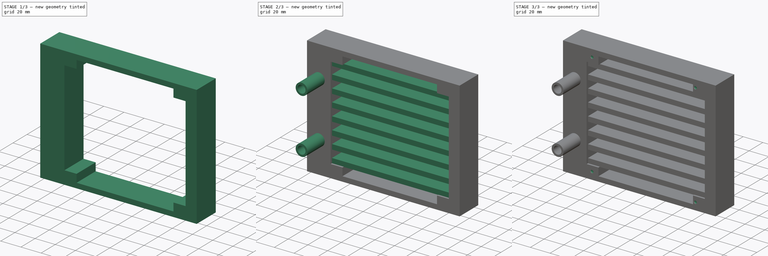
[diagram: build sequence overview — one tinted view per stage of 3, left to right]
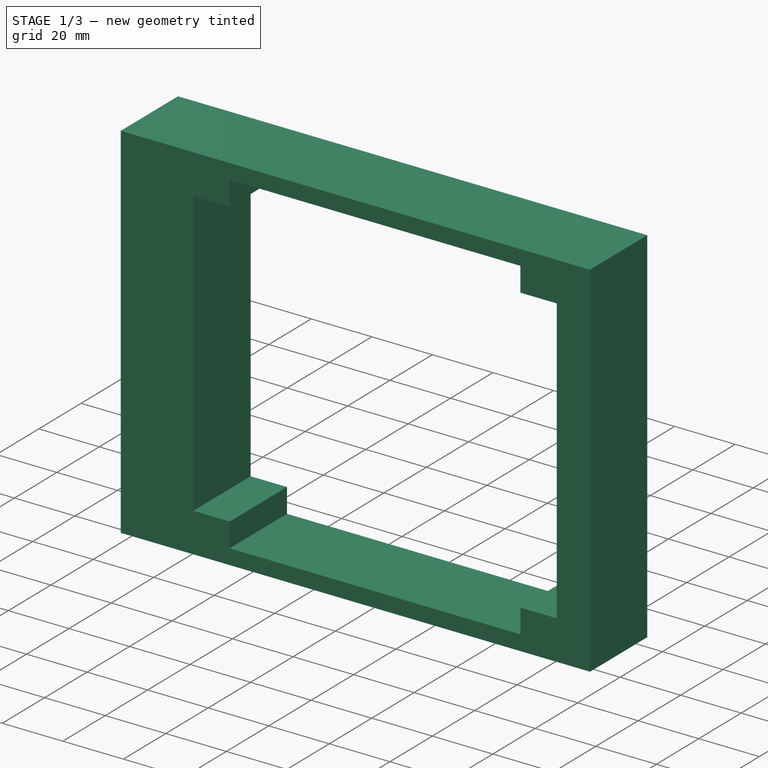
[diagram: stage 1 of 3 — iso view after this stage's code; geometry added in this stage tinted green]
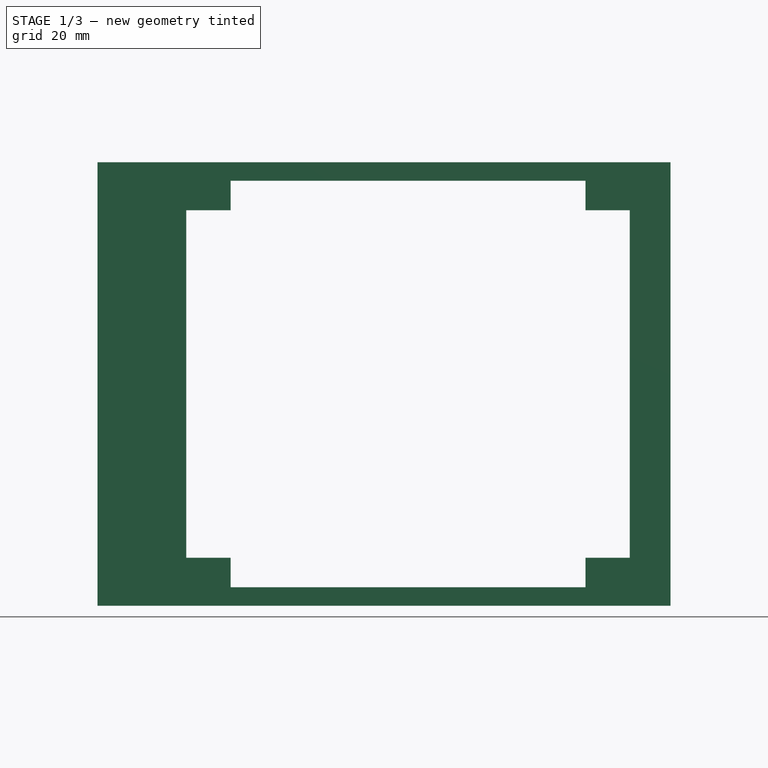
[diagram: stage 1 of 3 — front view after this stage's code; geometry added in this stage tinted green]
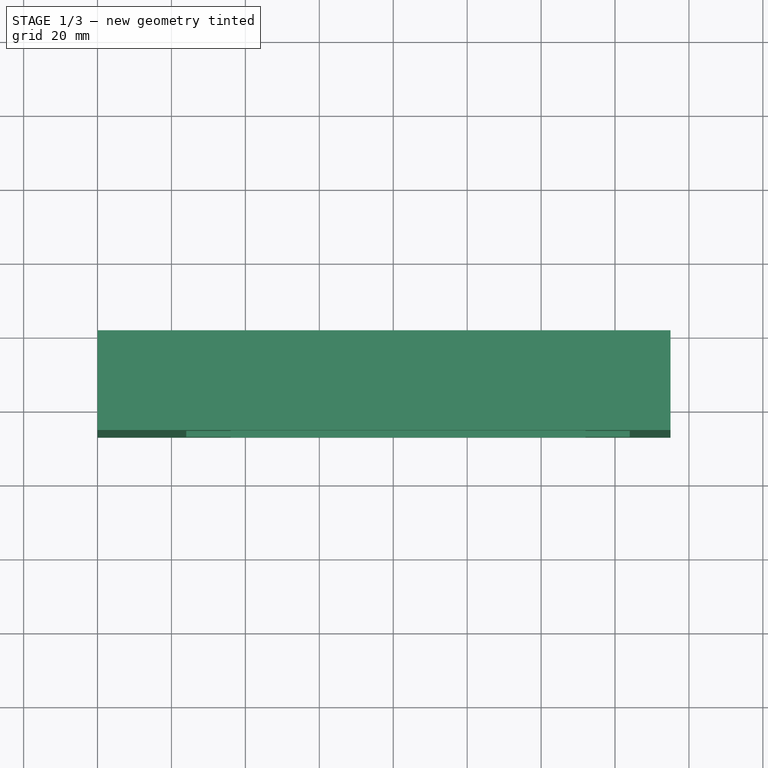
[diagram: stage 1 of 3 — top view after this stage's code; geometry added in this stage tinted green]
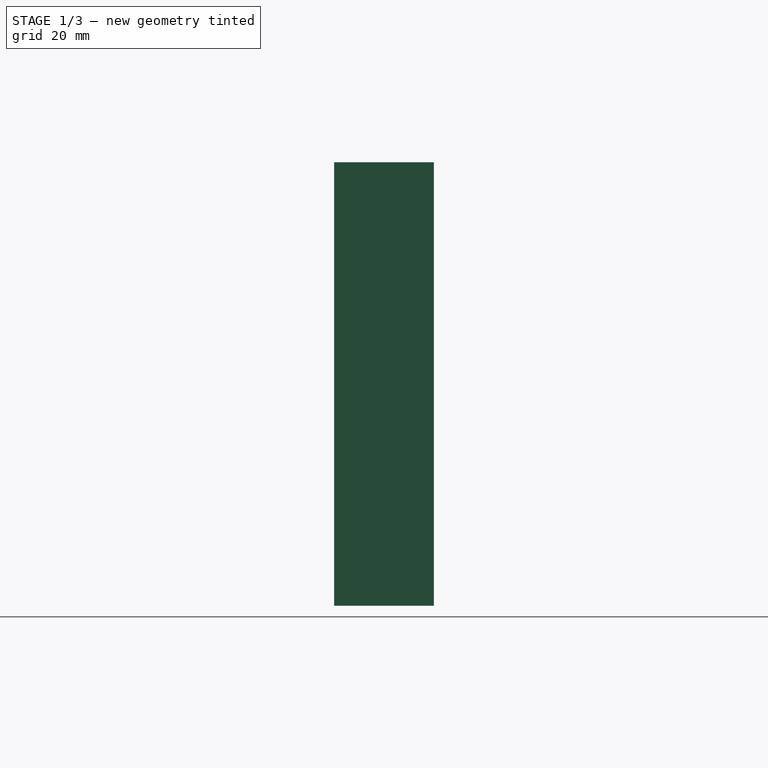
[diagram: stage 1 of 3 — right view after this stage's code; geometry added in this stage tinted green]
FCSTD DOCUMENT  (FreeCAD 0.21R33771 (Git))
Label: ococoo-ars120m8-27b
License: All rights reserved
LicenseURL: http://en.wikipedia.org/wiki/All_rights_reserved
objects: Sketcher::SketchObject×5, PartDesign::Pad×3, PartDesign::Pocket×1, PartDesign::Hole×1, PartDesign::Plane×1, PartDesign::Mirrored×1, PartDesign::Body×1
note: 18 computed .brp shape members not serialized (recipe doc carries the construction recipe); baked Part::Feature solids carry a one-line shape summary decoded from their .brp

FEATURE [Sketcher::SketchObject] Sketch
  FullyConstrained = true
  MapMode = 5
  Placement = pos=(0,0,0) rot=(1,0,0;1.5708rad)
  Support = -> [XZ_Plane]
  sketch-geometry (4):
    g0: LineSegment StartX=0 StartY=0 StartZ=0 EndX=155 EndY=0 EndZ=0
    g1: LineSegment StartX=155 StartY=0 StartZ=0 EndX=155 EndY=120 EndZ=0
    g2: LineSegment StartX=155 StartY=120 StartZ=0 EndX=0 EndY=120 EndZ=0
    g3: LineSegment StartX=0 StartY=120 StartZ=0 EndX=0 EndY=0 EndZ=0
  constraints (11):
    c: Coincident(g0,g1)
    c: Coincident(g1,g2)
    c: Coincident(g2,g3)
    c: Coincident(g3,g0)
    c: Horizontal(g0)
    c: Horizontal(g2)
    c: Vertical(g1)
    c: Vertical(g3)
    c: Coincident(g0,g-1)
    c: DistanceY(g3,g3) = 120
    c: DistanceX(g2,g2) = 155
FEATURE [PartDesign::Pad] Pad
  Direction = (0,-1,2e-16)
  Length = 27
  Length2 = 10
  Placement = pos=(0,0,0) rot=(1,0,0;1.5708rad)
  Profile = -> Sketch
  ReferenceAxis = -> Sketch [N_Axis]
  Type = 0
FEATURE [Sketcher::SketchObject] Sketch001
  ExternalGeometry = -> [Pad]
  FullyConstrained = true
  MapMode = 5
  Placement = pos=(0,-27,1.19e-14) rot=(1,0,0;1.5708rad)
  Support = -> [Pad]
  sketch-geometry (16):
    g0: LineSegment StartX=36 StartY=115 StartZ=0 EndX=36 EndY=107 EndZ=0
    g1: LineSegment StartX=36 StartY=107 StartZ=0 EndX=24 EndY=107 EndZ=0
    g2: LineSegment StartX=24 StartY=107 StartZ=0 EndX=24 EndY=13 EndZ=0
    g3: LineSegment StartX=24 StartY=13 StartZ=0 EndX=36 EndY=13 EndZ=0
    g4: LineSegment StartX=36 StartY=13 StartZ=0 EndX=36 EndY=5 EndZ=0
    g5: LineSegment StartX=36 StartY=5 StartZ=0 EndX=132 EndY=5 EndZ=0
    g6: LineSegment StartX=132 StartY=5 StartZ=0 EndX=132 EndY=13 EndZ=0
    g7: LineSegment StartX=132 StartY=13 StartZ=0 EndX=144 EndY=13 EndZ=0
    g8: LineSegment StartX=144 StartY=13 StartZ=0 EndX=144 EndY=107 EndZ=0
    g9: LineSegment StartX=144 StartY=107 StartZ=0 EndX=132 EndY=107 EndZ=0
    g10: LineSegment StartX=132 StartY=107 StartZ=0 EndX=132 EndY=115 EndZ=0
    g11: LineSegment StartX=132 StartY=115 StartZ=0 EndX=36 EndY=115 EndZ=0
    g12: LineSegment StartX=36 StartY=107 StartZ=0 EndX=132 EndY=107 EndZ=0
    g13: LineSegment StartX=132 StartY=107 StartZ=0 EndX=132 EndY=13 EndZ=0
    g14: LineSegment StartX=132 StartY=13 StartZ=0 EndX=36 EndY=13 EndZ=0
    g15: LineSegment StartX=36 StartY=13 StartZ=0 EndX=36 EndY=107 EndZ=0
  constraints (44):
    c: Vertical(g0)
    c: Coincident(g0,g1)
    c: Horizontal(g1)
    c: Coincident(g1,g2)
    c: Vertical(g2)
    c: Coincident(g2,g3)
    c: Coincident(g3,g4)
    c: Coincident(g4,g5)
    c: Horizontal(g5)
    c: Coincident(g5,g6)
    c: Coincident(g6,g7)
    c: Coincident(g7,g8)
    c: Coincident(g8,g9)
    c: Coincident(g9,g10)
    c: Coincident(g10,g11)
    c: Coincident(g11,g0)
    c: Horizontal(g11)
    c: Horizontal(g3)
    c: Horizontal(g7)
    c: Horizontal(g9)
    c: Vertical(g4)
    c: Vertical(g6)
    c: Vertical(g8)
    c: Vertical(g10)
    c: Coincident(g12,g13)
    c: Coincident(g13,g14)
    c: Coincident(g14,g15)
    c: Coincident(g15,g12)
    c: Horizontal(g12)
    c: Horizontal(g14)
    c: Vertical(g13)
    c: Vertical(g15)
    c: Coincident(g12,g0)
    c: Coincident(g13,g6)
    c: Coincident(g9,g12)
    c: Coincident(g14,g3)
    c: Equal(g3,g7)
    c: Equal(g0,g4)
    c: DistanceX(g1,g8) = 120
    c: DistanceY(g-1,g4) = 5
    c: DistanceY(g0,g-3) = 5
    c: DistanceX(g-1,g2) = 24
    c: DistanceY(g4,g4) = 8
    c: DistanceX(g7,g7) = 12
FEATURE [PartDesign::Pocket] Pocket
  BaseFeature = -> Pad
  Direction = (0,1,-2e-16)
  Length = 2
  Length2 = 5
  Placement = pos=(0,0,0) rot=(1,0,0;1.5708rad)
  Profile = -> Sketch001
  ReferenceAxis = -> Sketch001 [N_Axis]
  Type = 1
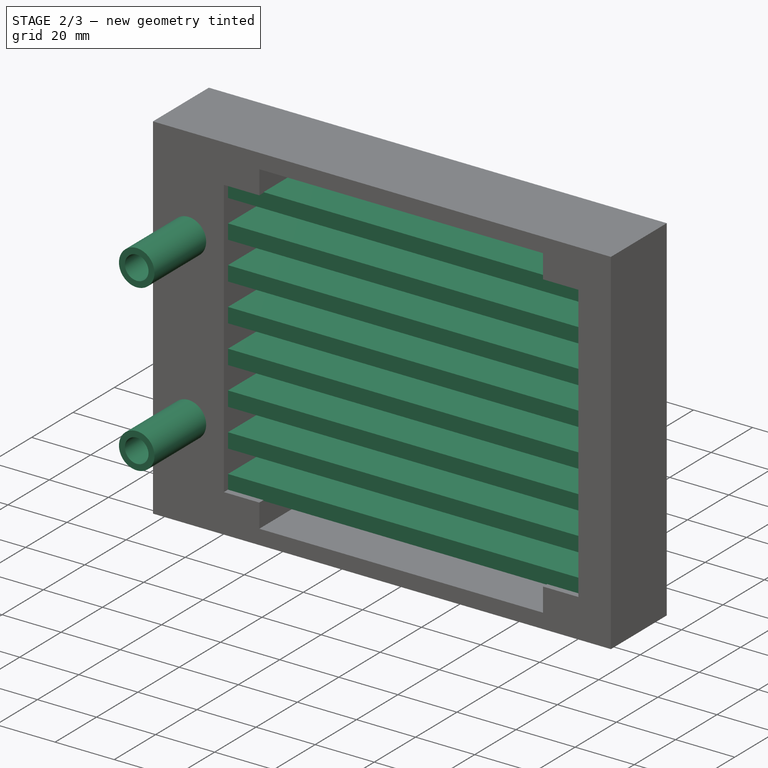
[diagram: stage 2 of 3 — iso view after this stage's code; geometry added in this stage tinted green]
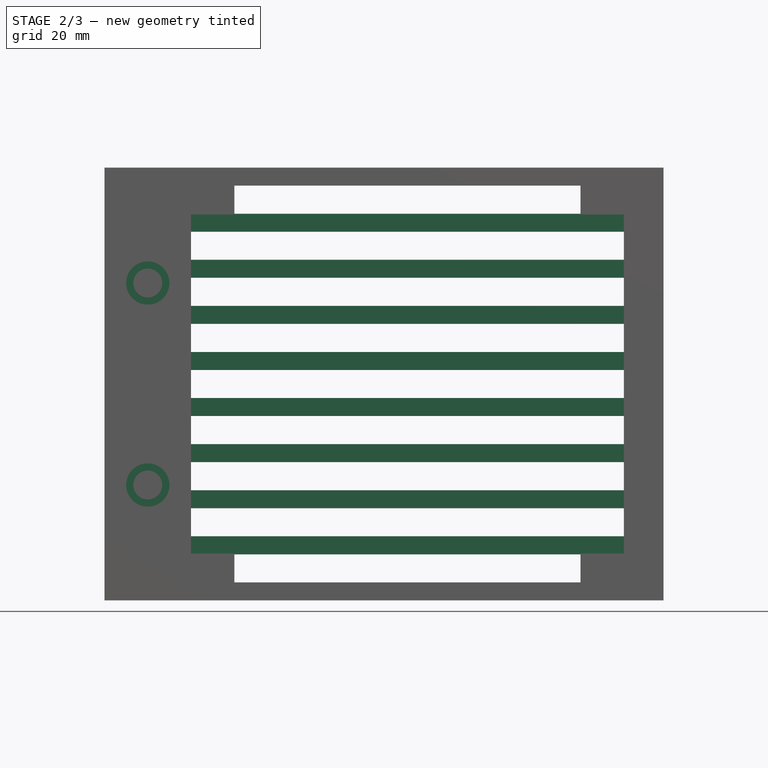
[diagram: stage 2 of 3 — front view after this stage's code; geometry added in this stage tinted green]
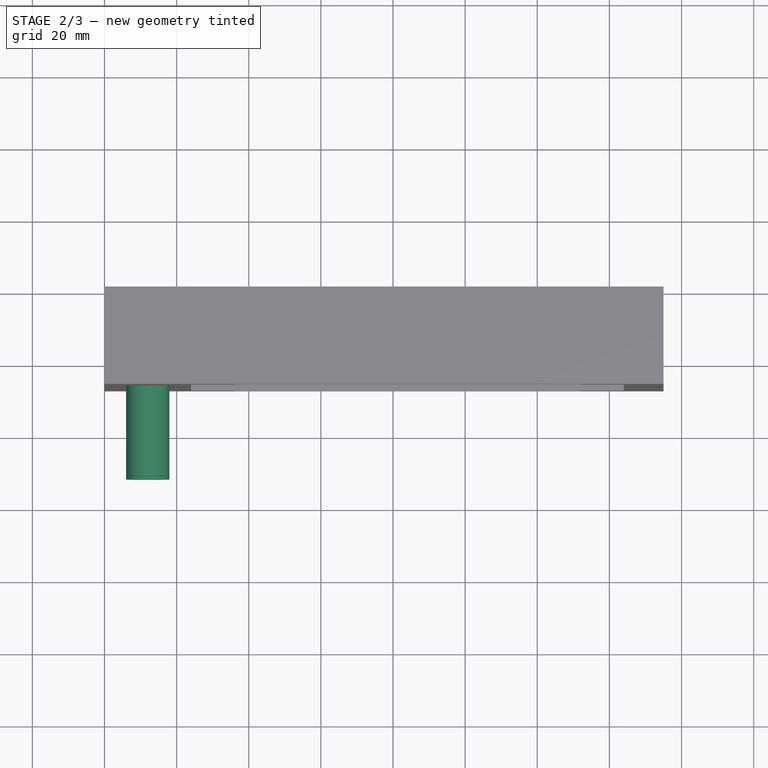
[diagram: stage 2 of 3 — top view after this stage's code; geometry added in this stage tinted green]
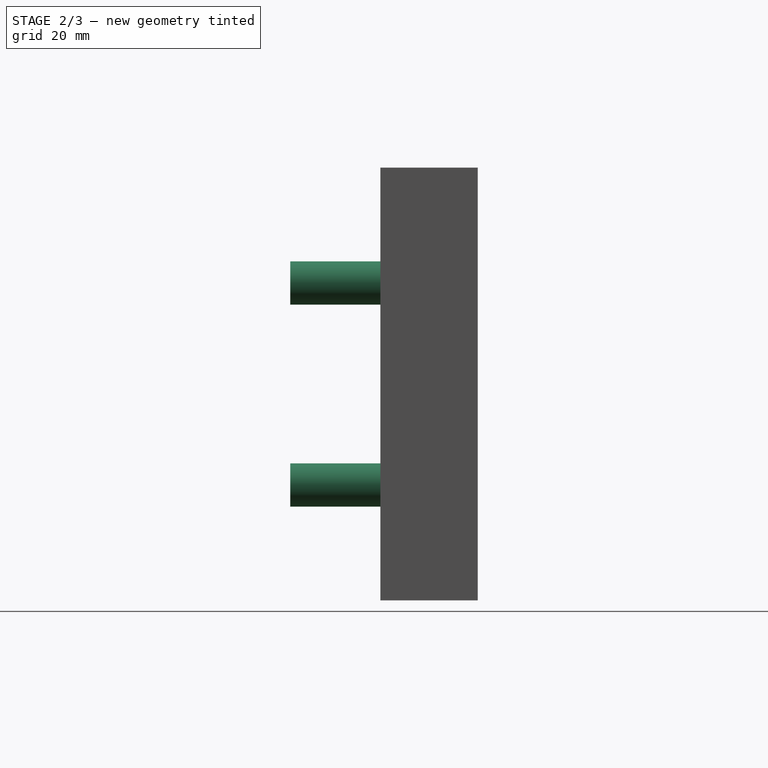
[diagram: stage 2 of 3 — right view after this stage's code; geometry added in this stage tinted green]
FEATURE [Sketcher::SketchObject] Sketch002
  ExternalGeometry = -> [Pocket]
  FullyConstrained = true
  MapMode = 5
  Placement = pos=(24,0,0) rot=(0.707107,0,0.707107;3.14159rad)
  Support = -> [Pocket]
  sketch-geometry (48):
    g0: LineSegment StartX=63.8889 StartY=25 StartZ=0 EndX=68.8889 EndY=25 EndZ=0
    g1: LineSegment StartX=68.8889 StartY=25 StartZ=0 EndX=68.8889 EndY=2 EndZ=0
    g2: LineSegment StartX=68.8889 StartY=2 StartZ=0 EndX=63.8889 EndY=2 EndZ=0
    g3: LineSegment StartX=63.8889 StartY=2 StartZ=0 EndX=63.8889 EndY=25 EndZ=0
    g4: LineSegment StartX=60 StartY=27 StartZ=0 EndX=60 EndY=-1.42e-14 EndZ=0
    g5: LineSegment StartX=76.6667 StartY=25 StartZ=0 EndX=81.6667 EndY=25 EndZ=0
    g6: LineSegment StartX=81.6667 StartY=25 StartZ=0 EndX=81.6667 EndY=2 EndZ=0
    g7: LineSegment StartX=81.6667 StartY=2 StartZ=0 EndX=76.6667 EndY=2 EndZ=0
    g8: LineSegment StartX=76.6667 StartY=2 StartZ=0 EndX=76.6667 EndY=25 EndZ=0
    g9: LineSegment StartX=89.4444 StartY=25 StartZ=0 EndX=94.4444 EndY=25 EndZ=0
    g10: LineSegment StartX=94.4444 StartY=25 StartZ=0 EndX=94.4444 EndY=2 EndZ=0
    g11: LineSegment StartX=94.4444 StartY=2 StartZ=0 EndX=89.4444 EndY=2 EndZ=0
    g12: LineSegment StartX=89.4444 StartY=2 StartZ=0 EndX=89.4444 EndY=25 EndZ=0
    g13: LineSegment StartX=107.222 StartY=25 StartZ=0 EndX=102.222 EndY=25 EndZ=0
    g14: LineSegment StartX=102.222 StartY=25 StartZ=0 EndX=102.222 EndY=2 EndZ=0
    g15: LineSegment StartX=102.222 StartY=2 StartZ=0 EndX=107.222 EndY=2 EndZ=0
    g16: LineSegment StartX=107.222 StartY=2 StartZ=0 EndX=107.222 EndY=25 EndZ=0
    g17: LineSegment StartX=56.1111 StartY=25 StartZ=0 EndX=51.1111 EndY=25 EndZ=0
    g18: LineSegment StartX=51.1111 StartY=25 StartZ=0 EndX=51.1111 EndY=2 EndZ=0
    g19: LineSegment StartX=51.1111 StartY=2 StartZ=0 EndX=56.1111 EndY=2 EndZ=0
    g20: LineSegment StartX=56.1111 StartY=2 StartZ=0 EndX=56.1111 EndY=25 EndZ=0
    g21: LineSegment StartX=43.3333 StartY=25 StartZ=0 EndX=38.3333 EndY=25 EndZ=0
    g22: LineSegment StartX=38.3333 StartY=25 StartZ=0 EndX=38.3333 EndY=2 EndZ=0
    g23: LineSegment StartX=38.3333 StartY=2 StartZ=0 EndX=43.3333 EndY=2 EndZ=0
    g24: LineSegment StartX=43.3333 StartY=2 StartZ=0 EndX=43.3333 EndY=25 EndZ=0
    g25: LineSegment StartX=25.5556 StartY=25 StartZ=0 EndX=30.5556 EndY=25 EndZ=0
    g26: LineSegment StartX=30.5556 StartY=25 StartZ=0 EndX=30.5556 EndY=2 EndZ=0
    g27: LineSegment StartX=30.5556 StartY=2 StartZ=0 EndX=25.5556 EndY=2 EndZ=0
    g28: LineSegment StartX=25.5556 StartY=2 StartZ=0 EndX=25.5556 EndY=25 EndZ=0
    g29: LineSegment StartX=17.7778 StartY=25 StartZ=0 EndX=12.7778 EndY=25 EndZ=0
    g30: LineSegment StartX=12.7778 StartY=25 StartZ=0 EndX=12.7778 EndY=2 EndZ=0
    g31: LineSegment StartX=12.7778 StartY=2 StartZ=0 EndX=17.7778 EndY=2 EndZ=0
    g32: LineSegment StartX=17.7778 StartY=2 StartZ=0 EndX=17.7778 EndY=25 EndZ=0
    g33: LineSegment StartX=56.1111 StartY=25 StartZ=0 EndX=63.8889 EndY=25 EndZ=0
    g34: LineSegment StartX=68.8889 StartY=25 StartZ=0 EndX=76.6667 EndY=25 EndZ=0
    g35: LineSegment StartX=81.6667 StartY=25 StartZ=0 EndX=89.4444 EndY=25 EndZ=0
    g36: LineSegment StartX=81.6667 StartY=2 StartZ=0 EndX=89.4444 EndY=2 EndZ=0
    g37: LineSegment StartX=68.8889 StartY=2 StartZ=0 EndX=76.6667 EndY=2 EndZ=0
    g38: LineSegment StartX=56.1111 StartY=2 StartZ=0 EndX=63.8889 EndY=2 EndZ=0
    g39: LineSegment StartX=51.1111 StartY=2 StartZ=0 EndX=43.3333 EndY=2 EndZ=0
    g40: LineSegment StartX=38.3333 StartY=2 StartZ=0 EndX=30.5556 EndY=2 EndZ=0
    g41: LineSegment StartX=30.5556 StartY=25 StartZ=0 EndX=38.3333 EndY=25 EndZ=0
    g42: LineSegment StartX=43.3333 StartY=25 StartZ=0 EndX=51.1111 EndY=25 EndZ=0
    g43: LineSegment StartX=17.7778 StartY=2 StartZ=0 EndX=25.5556 EndY=2 EndZ=0
    g44: LineSegment StartX=17.7778 StartY=25 StartZ=0 EndX=25.5556 EndY=25 EndZ=0
    g45: LineSegment StartX=102.222 StartY=25 StartZ=0 EndX=94.4444 EndY=25 EndZ=0
    g46: LineSegment StartX=94.4444 StartY=2 StartZ=0 EndX=102.222 EndY=2 EndZ=0
    g47: LineSegment StartX=12.7778 StartY=25 StartZ=0 EndX=5 EndY=25 EndZ=0
  constraints (129):
    c: Coincident(g0,g1)
    c: Coincident(g1,g2)
    c: Coincident(g2,g3)
    c: Coincident(g3,g0)
    c: Horizontal(g2)
    c: Vertical(g1)
    c: Vertical(g3)
    c: DistanceY(g0,g4) = 2
    c: DistanceY(g4,g1) = 2
    c: PointOnObject(g4,g-3)
    c: PointOnObject(g4,g-4)
    c: Symmetric(g-3,g-3,g4)
    c: DistanceX(g0,g0) = 5
    c: Horizontal(g0)
    c: Coincident(g5,g6)
    c: Coincident(g6,g7)
    c: Coincident(g7,g8)
    c: Coincident(g8,g5)
    c: Horizontal(g5)
    c: Horizontal(g7)
    c: Vertical(g6)
    c: Vertical(g8)
    c: Coincident(g9,g10)
    c: Coincident(g10,g11)
    c: Coincident(g11,g12)
    c: Coincident(g12,g9)
    c: Horizontal(g9)
    c: Horizontal(g11)
    c: Vertical(g10)
    c: Vertical(g12)
    c: Coincident(g13,g14)
    c: Coincident(g14,g15)
    c: Coincident(g15,g16)
    c: Coincident(g16,g13)
    c: Horizontal(g13)
    c: Horizontal(g15)
    c: Vertical(g14)
    c: Vertical(g16)
    c: Coincident(g17,g18)
    c: Coincident(g18,g19)
    c: Coincident(g19,g20)
    c: Coincident(g20,g17)
    c: Horizontal(g17)
    c: Horizontal(g19)
    c: Vertical(g18)
    c: Vertical(g20)
    c: Coincident(g21,g22)
    c: Coincident(g22,g23)
    c: Coincident(g23,g24)
    c: Coincident(g24,g21)
    c: Horizontal(g21)
    c: Horizontal(g23)
    c: Vertical(g22)
    c: Vertical(g24)
    c: Coincident(g25,g26)
    c: Coincident(g26,g27)
    c: Coincident(g27,g28)
    c: Coincident(g28,g25)
    c: Horizontal(g25)
    c: Horizontal(g27)
    c: Vertical(g26)
    c: Vertical(g28)
    c: Coincident(g29,g30)
    c: Coincident(g30,g31)
    c: Coincident(g31,g32)
    c: Coincident(g32,g29)
    c: Horizontal(g29)
    c: Horizontal(g31)
    c: Vertical(g30)
    c: Vertical(g32)
    c: Coincident(g33,g17)
    c: Coincident(g33,g0)
    c: Coincident(g34,g0)
    c: Coincident(g34,g5)
    c: Horizontal(g34)
    c: Coincident(g35,g5)
    c: Coincident(g35,g9)
    c: Coincident(g36,g6)
    c: Coincident(g36,g11)
    c: Coincident(g37,g1)
    c: Coincident(g37,g7)
    c: Coincident(g38,g19)
    c: Coincident(g38,g2)
    c: Coincident(g39,g18)
    c: Coincident(g39,g23)
    c: Coincident(g40,g22)
    c: Coincident(g40,g26)
    c: Coincident(g41,g25)
    c: Coincident(g41,g21)
    c: Horizontal(g41)
    c: Coincident(g42,g21)
    c: Coincident(g42,g17)
    c: Horizontal(g42)
    c: Horizontal(g35)
    c: Horizontal(g36)
    c: Horizontal(g37)
    c: Horizontal(g38)
    c: Horizontal(g39)
    c: Horizontal(g40)
    c: Equal(g40,g39)
    c: Equal(g39,g38)
    c: Equal(g38,g37)
    c: Equal(g37,g36)
    c: Equal(g29,g25)
    c: Equal(g25,g21)
    c: Equal(g21,g17)
    c: Equal(g17,g0)
    c: Equal(g0,g5)
    c: Equal(g5,g9)
    c: Equal(g9,g13)
    c: Coincident(g43,g31)
    c: Coincident(g43,g27)
    c: Horizontal(g43)
    c: Coincident(g44,g29)
    c: Coincident(g44,g25)
    c: Horizontal(g44)
    c: Coincident(g45,g13)
    c: Coincident(g45,g9)
    c: Horizontal(g45)
    c: Coincident(g46,g10)
    c: Coincident(g46,g14)
    c: Horizontal(g46)
    c: Equal(g36,g46)
    c: Equal(g43,g40)
    c: Symmetric(g17,g0,g4)
    c: Coincident(g47,g29)
    c: PointOnObject(g47,g-5)
    c: Horizontal(g47)
    c: Equal(g47,g44)
FEATURE [PartDesign::Pad] Pad001
  BaseFeature = -> Pocket
  Direction = (1,0,-2e-16)
  Length = 10
  Length2 = 10
  Placement = pos=(0,0,0) rot=(1,0,0;1.5708rad)
  Profile = -> Sketch002
  ReferenceAxis = -> Sketch002 [N_Axis]
  Type = 3
  UpToFace = -> Pocket [Face11]
FEATURE [Sketcher::SketchObject] Sketch003
  ExternalGeometry = -> [Pad001]
  FullyConstrained = true
  MapMode = 5
  Placement = pos=(0,-27,1.19e-14) rot=(1,0,0;1.5708rad)
  Support = -> [Pad001]
  sketch-geometry (6):
    g0: Circle CenterX=12 CenterY=88 CenterZ=0 NormalX=0 NormalY=0 NormalZ=1 AngleXU=0 Radius=4
    g1: Circle CenterX=12 CenterY=32 CenterZ=0 NormalX=0 NormalY=0 NormalZ=1 AngleXU=0 Radius=4
    g2: LineSegment StartX=12 StartY=88 StartZ=0 EndX=12 EndY=32 EndZ=0
    g3: LineSegment StartX=0 StartY=60 StartZ=0 EndX=72.38 EndY=60 EndZ=0
    g4: Circle CenterX=12 CenterY=32 CenterZ=0 NormalX=0 NormalY=0 NormalZ=1 AngleXU=0 Radius=6
    g5: Circle CenterX=12 CenterY=88 CenterZ=0 NormalX=0 NormalY=0 NormalZ=1 AngleXU=0 Radius=6
  constraints (14):
    c: Coincident(g2,g0)
    c: Coincident(g2,g1)
    c: Symmetric(g-1,g-3,g3)
    c: Symmetric(g0,g1,g3)
    c: DistanceX(g3,g3) = 72.38
    c: PointOnObject(g3,g-2)
    c: Diameter(g1) = 8
    c: Diameter(g0) = 8
    c: DistanceX(g-1,g1) = 12
    c: Coincident(g4,g1)
    c: Coincident(g5,g0)
    c: Diameter(g5) = 12
    c: Diameter(g4) = 12
    c: DistanceY(g0,g-3) = 32
FEATURE [PartDesign::Pad] Pad002
  BaseFeature = -> Pad001
  Direction = (0,-1,4e-16)
  Length = 25
  Length2 = 10
  Placement = pos=(0,0,0) rot=(1,0,0;1.5708rad)
  Profile = -> Sketch003
  ReferenceAxis = -> Sketch003 [N_Axis]
  Type = 0
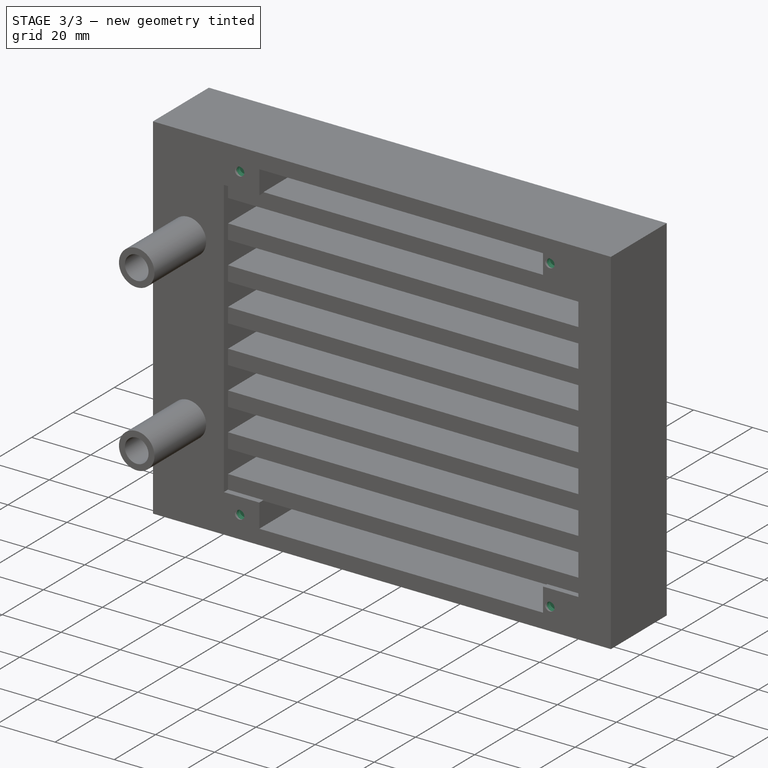
[diagram: stage 3 of 3 — iso view after this stage's code; geometry added in this stage tinted green]
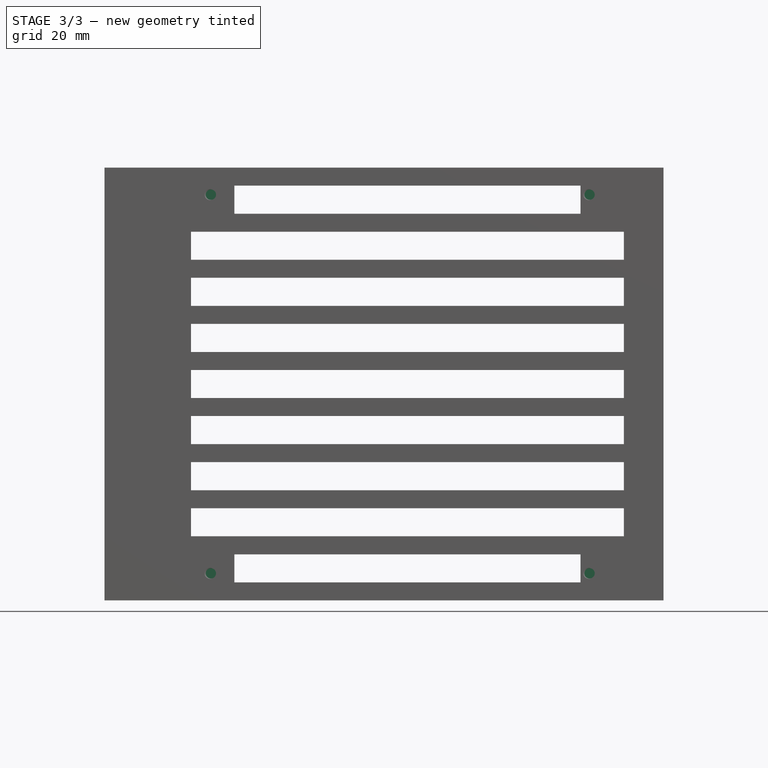
[diagram: stage 3 of 3 — front view after this stage's code; geometry added in this stage tinted green]
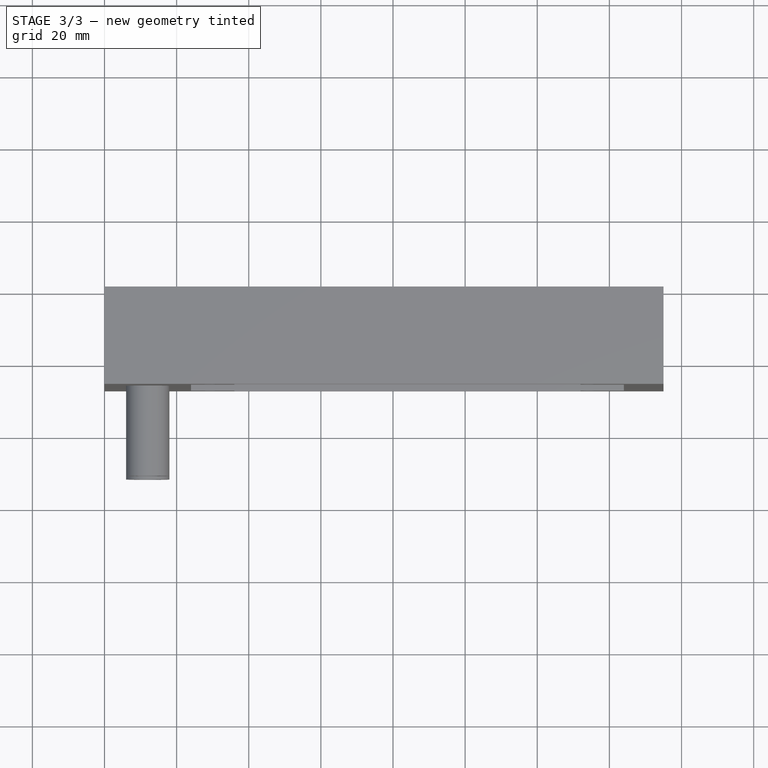
[diagram: stage 3 of 3 — top view after this stage's code; geometry added in this stage tinted green]
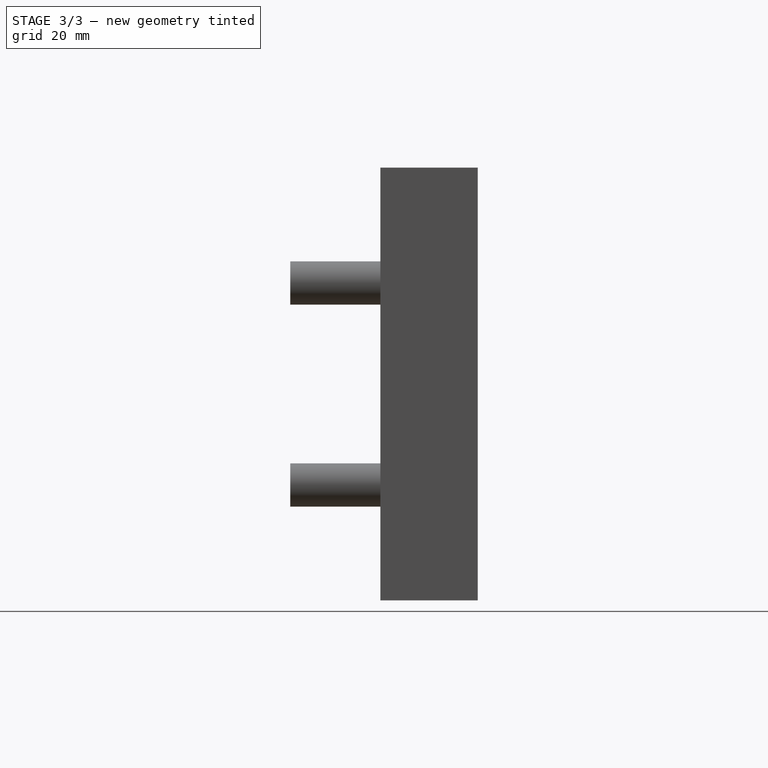
[diagram: stage 3 of 3 — right view after this stage's code; geometry added in this stage tinted green]
FEATURE [Sketcher::SketchObject] Sketch004
  ExternalGeometry = -> [Pad002]
  FullyConstrained = false
  MapMode = 5
  Placement = pos=(0,-27,1.49e-14) rot=(1,0,0;1.5708rad)
  Support = -> [Pad002]
  sketch-geometry (14):
    g0: LineSegment StartX=29.5 StartY=112.5 StartZ=0 EndX=134.5 EndY=112.5 EndZ=0
    g1: LineSegment StartX=134.5 StartY=112.5 StartZ=0 EndX=134.5 EndY=7.5 EndZ=0
    g2: LineSegment StartX=134.5 StartY=7.5 StartZ=0 EndX=29.5 EndY=7.5 EndZ=0
    g3: LineSegment StartX=29.5 StartY=7.5 StartZ=0 EndX=29.5 EndY=112.5 EndZ=0
    g4: Circle CenterX=29.5 CenterY=112.5 CenterZ=0 NormalX=0 NormalY=0 NormalZ=1 AngleXU=0 Radius=10.7054
    g5: Circle CenterX=134.5 CenterY=112.5 CenterZ=0 NormalX=0 NormalY=0 NormalZ=1 AngleXU=0 Radius=19.87
    g6: Circle CenterX=134.5 CenterY=7.5 CenterZ=0 NormalX=0 NormalY=0 NormalZ=1 AngleXU=0 Radius=17.4271
    g7: Circle CenterX=29.5 CenterY=7.5 CenterZ=0 NormalX=0 NormalY=0 NormalZ=1 AngleXU=0 Radius=12.2821
    g8: LineSegment StartX=24 StartY=13 StartZ=0 EndX=29.5 EndY=7.5 EndZ=0
    g9: LineSegment StartX=24 StartY=107 StartZ=0 EndX=29.5 EndY=112.5 EndZ=0
    g10: LineSegment StartX=144 StartY=107 StartZ=0 EndX=140 EndY=107 EndZ=0
    g11: LineSegment StartX=140 StartY=107 StartZ=0 EndX=140 EndY=13 EndZ=0
    g12: LineSegment StartX=140 StartY=13 StartZ=0 EndX=144 EndY=13 EndZ=0
    g13: LineSegment StartX=134.5 StartY=112.5 StartZ=0 EndX=140 EndY=107 EndZ=0
  constraints (30):
    c: Coincident(g0,g1)
    c: Coincident(g1,g2)
    c: Coincident(g2,g3)
    c: Coincident(g3,g0)
    c: Horizontal(g0)
    c: Horizontal(g2)
    c: Vertical(g1)
    c: Vertical(g3)
    c: Coincident(g4,g0)
    c: Coincident(g5,g0)
    c: Coincident(g6,g1)
    c: Coincident(g7,g2)
    c: Coincident(g8,g-3)
    c: Coincident(g8,g7)
    c: Coincident(g9,g-3)
    c: Coincident(g9,g4)
    c: Equal(g9,g8)
    c: DistanceX(g2,g2) = 105
    c: Equal(g2,g1)
    c: Coincident(g-4,g10)
    c: Horizontal(g10)
    c: Coincident(g10,g11)
    c: Vertical(g11)
    c: Coincident(g11,g12)
    c: Coincident(g12,g-4)
    c: DistanceX(g12,g12) = 4
    c: Horizontal(g12)
    c: Coincident(g13,g5)
    c: Coincident(g13,g10)
    c: Equal(g13,g9)
FEATURE [PartDesign::Hole] Hole
  BaseFeature = -> Pad002
  CustomThreadClearance = 0
  Depth = 2
  DepthType = 0
  Diameter = 2.85
  DrillForDepth = false
  DrillPoint = 0
  DrillPointAngle = 118
  HoleCutCountersinkAngle = 90
  HoleCutCustomValues = false
  HoleCutDepth = 0
  HoleCutDiameter = 6.1
  HoleCutType = 0
  ModelThread = true
  Placement = pos=(0,0,0) rot=(1,0,0;1.5708rad)
  Profile = -> Sketch004
  Tapered = false
  TaperedAngle = 90
  ThreadClass = 0
  ThreadDepth = 2
  ThreadDepthType = 0
  ThreadDirection = 0
  ThreadFit = 0
  ThreadSize = 5
  ThreadType = 3
  Threaded = true
  UseCustomThreadClearance = false
FEATURE [PartDesign::Plane] DatumPlane
  AttachmentOffset = pos=(0,0,13.5) rot=(0,0,1;0rad)
  Length = 212.311
  MapMode = 5
  Placement = pos=(0,-13.5,-3e-15) rot=(1,0,0;1.5708rad)
  ResizeMode = 0
  Support = -> [XZ_Plane]
  Width = 177.311
FEATURE [PartDesign::Mirrored] Mirrored
  BaseFeature = -> Hole
  MirrorPlane = -> DatumPlane
  Originals = -> [Hole]
  Placement = pos=(0,0,0) rot=(1,0,0;1.5708rad)
FEATURE [PartDesign::Body] Body  label="实体"
  Group = -> [Sketch,Pad,Sketch001,Pocket,Sketch002,Pad001,Sketch003,Pad002,Sketch004,Hole,Mirrored,DatumPlane]
  Origin = -> Origin
  Tip = -> Mirrored
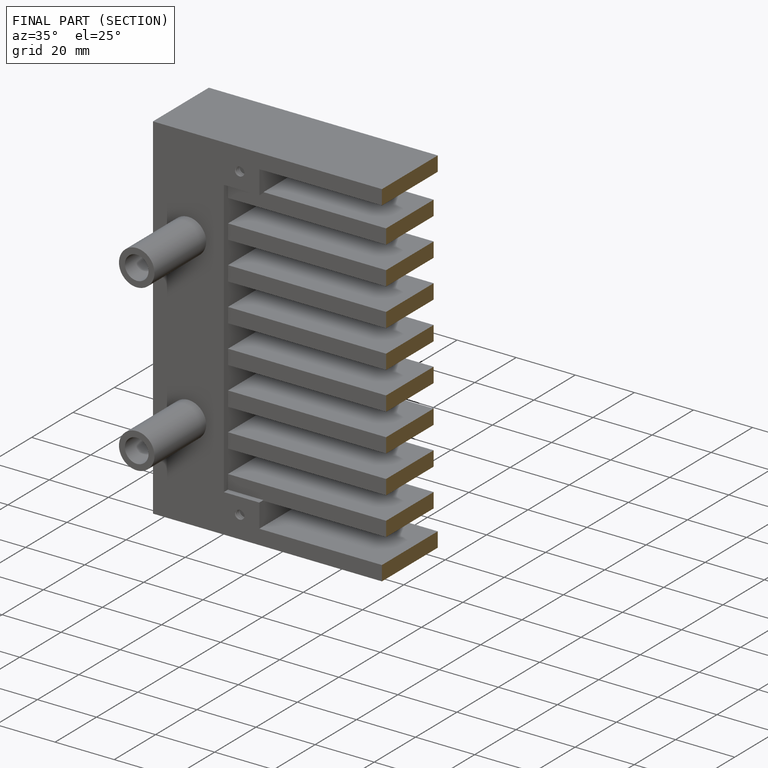
[diagram: finished part — half-section view (interior)]
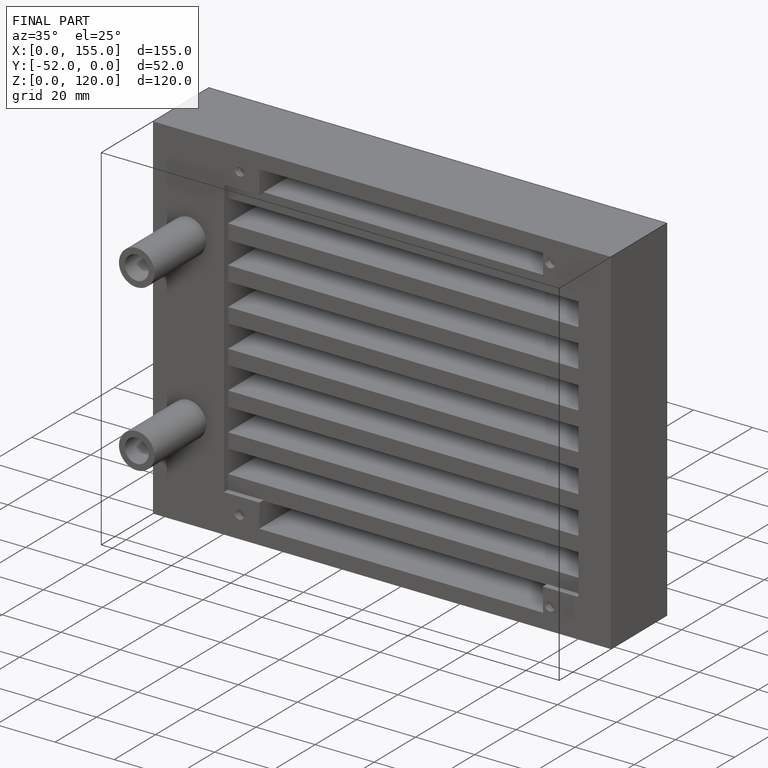
[diagram: finished part — iso view with bounding-box wireframe]
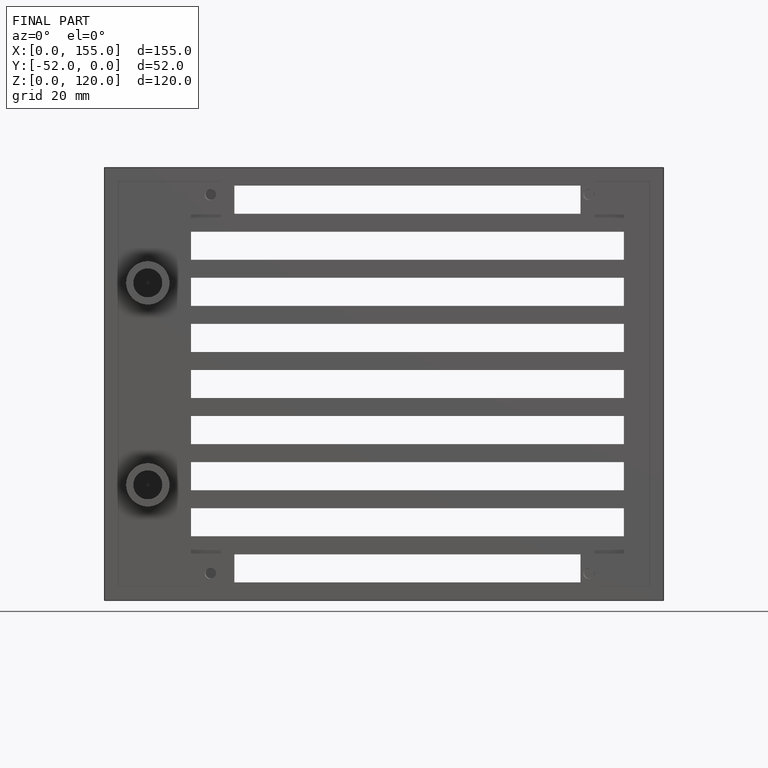
[diagram: finished part — front view with bounding-box wireframe]
